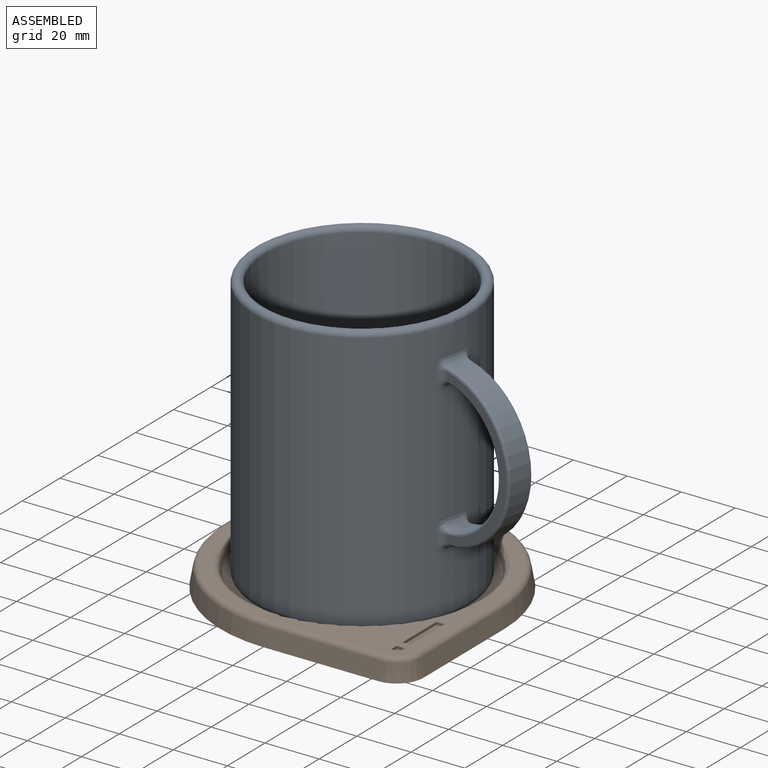
[diagram: assembled view]
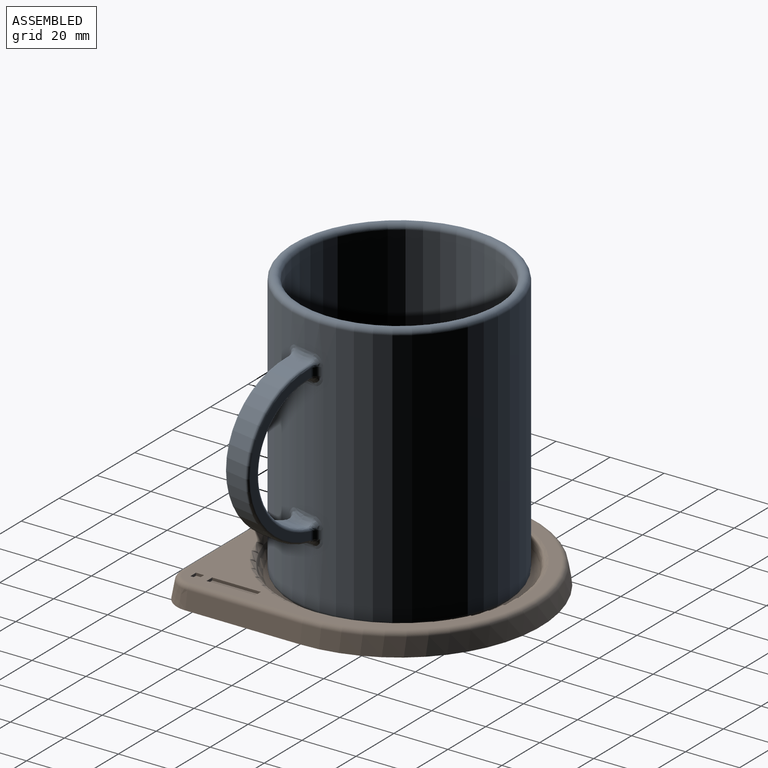
[diagram: assembled view, second angle]
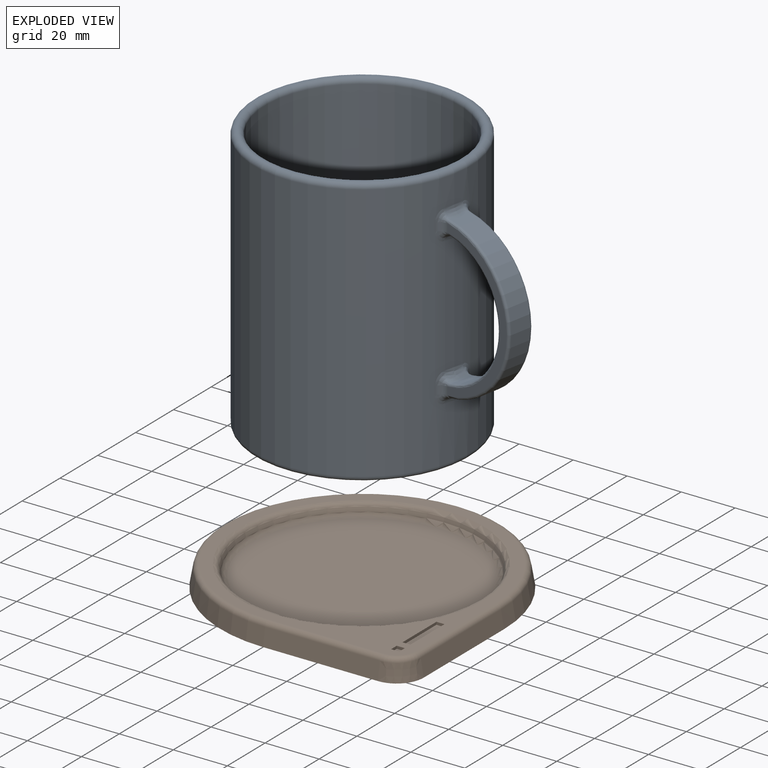
[diagram: exploded view]
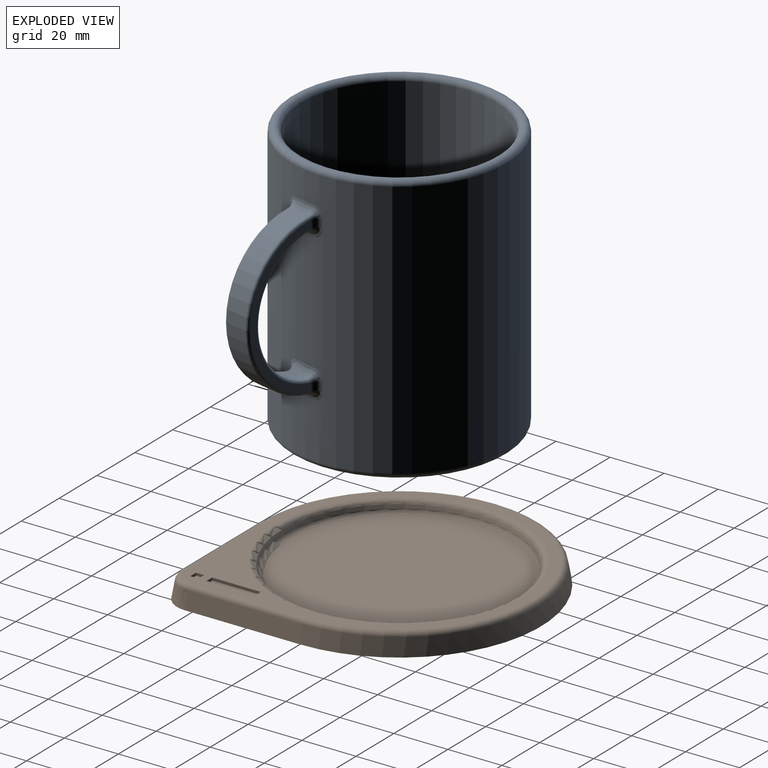
[diagram: exploded view, second angle]
ASSEMBLY  parts=2 mates=2
PART A: 31 faces, bbox 114.8x86.6x100 mm
  f0: cylinder r=40mm len=96mm, axis (0,0,-1), area 23821mm2, adj f12,f13,f14,f15,f16,f17,f18,f19
  f1: plane 76x76mm, normal (0,0,-1), area 4536.5mm2, adj f30
  f2: cylinder r=36mm len=92mm, axis (0,0,-1), area 20809.9mm2, adj f28,f29
  f3: plane 68x68mm, normal (0,0,1), area 3631.7mm2, adj f28
  f4: cylinder r=30mm len=59.6mm, axis (0,1,0), area 696.6mm2, adj f9,f11,f16,f23
  f5: cylinder r=25mm len=49.24mm, axis (0,1,0), area 556.3mm2, adj f8,f10,f15,f24
  f6: plane 57.63x25.75mm, normal (0,-1,0), area 239.6mm2, adj f10,f11,f19,f27
  f7: plane 57.63x25.75mm, normal (0,1,0), area 239.6mm2, adj f8,f9,f12,f20
  f8: torus R=26mm, axis (0,-1,0), area 113.2mm2, adj f5,f7,f13,f22
  f9: torus R=29mm, axis (0,-1,0), area 136mm2, adj f4,f7,f14,f21
  f10: torus R=26mm, axis (0,-1,0), area 113.2mm2, adj f5,f6,f17,f26
  f11: torus R=29mm, axis (0,-1,0), area 136mm2, adj f4,f6,f18,f25
  f12: cylinder r=3mm len=3.02mm, axis (0,0,-1), area 12.5mm2, adj f0,f7,f13,f14
  f13: bspline ~5.01x4.52mm, area 15.4mm2, adj f0,f8,f12,f15
  f14: bspline ~4.87x3.93mm, area 13.9mm2, adj f0,f9,f12,f16
  f15: bspline ~17.57x4.37mm, area 40.1mm2, adj f0,f5,f13,f17
  f16: bspline ~19.18x3.63mm, area 33.4mm2, adj f0,f4,f14,f18
  f17: bspline ~5.01x4.52mm, area 15.4mm2, adj f0,f10,f15,f19
  f18: bspline ~4.87x4.55mm, area 13.9mm2, adj f0,f11,f16,f19
  f19: cylinder r=3mm len=3.02mm, axis (0,0,-1), area 12.5mm2, adj f0,f6,f17,f18
  f20: cylinder r=3mm len=3.02mm, axis (0,0,-1), area 12.5mm2, adj f0,f7,f21,f22
  f21: bspline ~4.87x4.55mm, area 13.9mm2, adj f0,f9,f20,f23
  f22: bspline ~5.01x4.52mm, area 15.4mm2, adj f0,f8,f20,f24
  f23: bspline ~19.18x3.63mm, area 33.4mm2, adj f0,f4,f21,f25
  f24: bspline ~17.57x4.37mm, area 40.1mm2, adj f0,f5,f22,f26
  f25: bspline ~4.87x4.55mm, area 13.9mm2, adj f0,f11,f23,f27
  f26: bspline ~5.01x4.52mm, area 15.4mm2, adj f0,f10,f24,f27
  f27: cylinder r=3mm len=3.02mm, axis (0,0,-1), area 12.5mm2, adj f0,f6,f25,f26
  f28: torus R=34mm, axis (0,0,1), area 696.3mm2, adj f2,f3
  f29: torus R=38mm, axis (0,0,1), area 1500.2mm2, adj f0,f2
  f30: torus R=38mm, axis (0,0,1), area 775.2mm2, adj f0,f1
PART B: 24 faces, bbox 111.3x111.3x8 mm
  f0: plane 98.82x98.82mm, normal (0,0,1), area 1657.9mm2, adj f8,f9,f10,f11,f12,f14,f15,f16
  f1: plane 42.5x6.35mm, normal (0.98,0,0.17), area 273.9mm2, adj f2,f4,f7,f10
  f2: cone r=52.5mm half-angle=10deg, axis (0,0,-1), area 1577.6mm2, adj f1,f3,f4,f8
  f3: plane 42.5x6.35mm, normal (0,-0.98,0.17), area 273.9mm2, adj f2,f4,f7,f9
  f4: plane 105x105mm, normal (0,0,-1), area 9229.1mm2, adj f1,f2,f3,f7
  f5: cone r=42.5mm half-angle=20deg, axis (0,0,1), area 395.4mm2, adj f12,f13
  f6: plane 82.2x82.2mm, normal (0,0,1), area 5306.7mm2, adj f13
  f7: cone r=10mm half-angle=10deg, axis (0,0,-1), area 95.6mm2, adj f1,f3,f4,f11
  f8: torus R=49.41mm, axis (0,0,1), area 665.8mm2, adj f0,f2,f9,f10
  f9: cylinder r=2mm len=42.5mm, axis (1,0,0), area 118.7mm2, adj f0,f3,f8,f11
  f10: cylinder r=2mm len=42.5mm, axis (0,1,0), area 118.7mm2, adj f0,f1,f8,f11
  f11: torus R=6.91mm, axis (0,0,1), area 35.5mm2, adj f0,f7,f9,f10
  f12: torus R=45.36mm, axis (0,0,1), area 679.8mm2, adj f0,f5
  f13: torus R=41.1mm, axis (0,0,1), area 647.5mm2, adj f5,f6
  f14: plane 3x1mm, normal (0,-1,0), area 3mm2, adj f0,f15,f17,f18
  f15: plane 3x1mm, normal (1,0,0), area 3mm2, adj f0,f14,f16,f18
  f16: plane 3x1mm, normal (0,1,0), area 3mm2, adj f0,f15,f17,f18
  f17: plane 3x1mm, normal (-1,0,0), area 3mm2, adj f0,f14,f16,f18
  f18: plane 3x3mm, normal (0,0,1), area 9mm2, adj f14,f15,f16,f17
  f19: plane 3x1mm, normal (0,-1,0), area 3mm2, adj f0,f20,f22,f23
  f20: plane 18x1mm, normal (1,0,0), area 18mm2, adj f0,f19,f21,f23
  f21: plane 3x1mm, normal (0,1,0), area 3mm2, adj f0,f20,f22,f23
  f22: plane 18x1mm, normal (-1,0,0), area 18mm2, adj f0,f19,f21,f23
  f23: plane 18x3mm, normal (0,0,1), area 54mm2, adj f19,f20,f21,f22
PLACE A rot(axis=(0,0,-1),10.8deg) t=(0,0,0)mm
PLACE B t=(0,0,-4)mm
MATE planar B.f5 <-> A.f0  axis (0,0,1) through (0,0,0)mm
MATE cylindrical A.f0 <-> B.f5  axis (0,0,-1) through (0,0,50)mm
